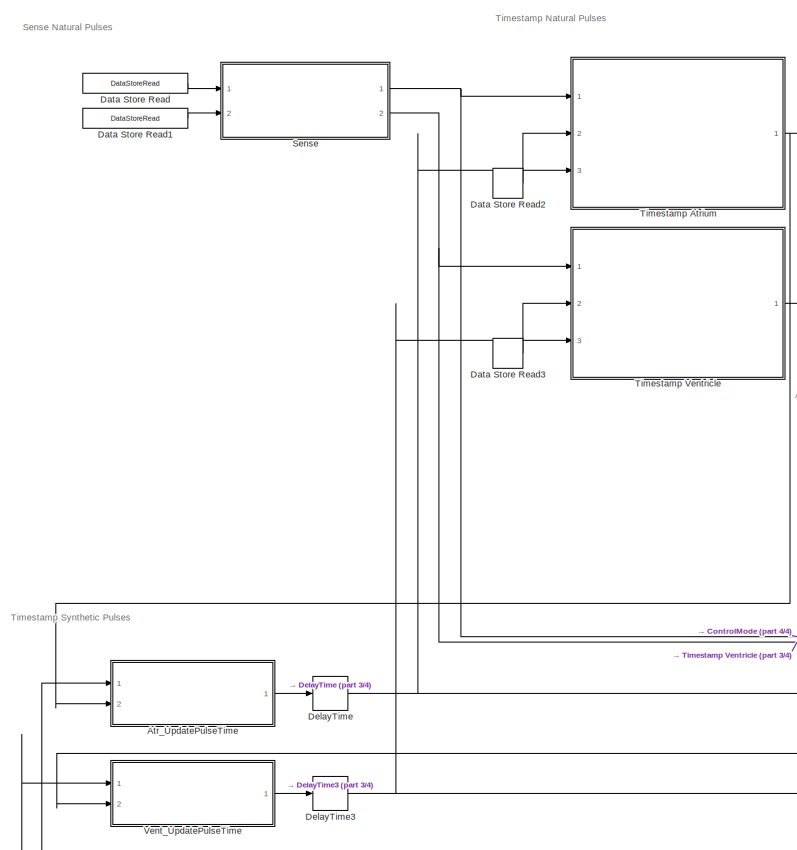
[diagram: root canvas - part 1/4, central region]
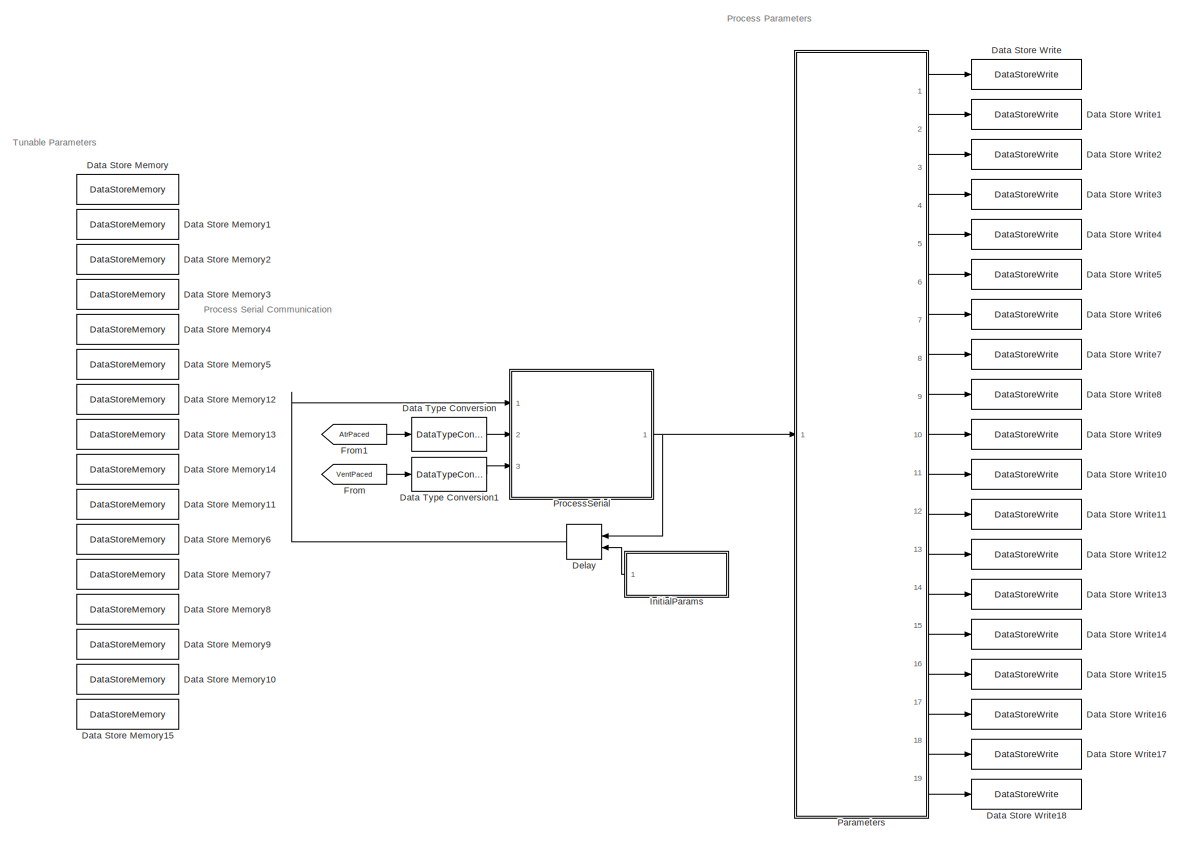
[diagram: root canvas - part 2/4, middle left region]
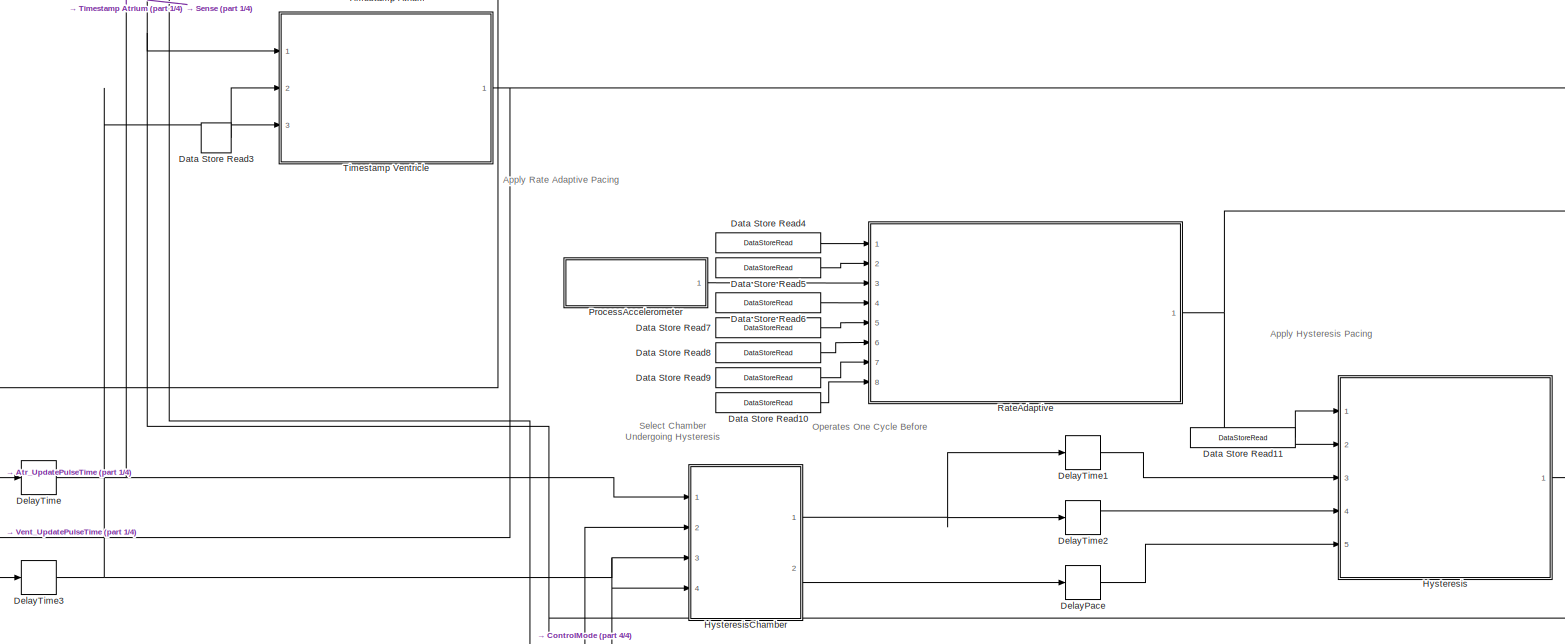
[diagram: root canvas - part 3/4, central region]
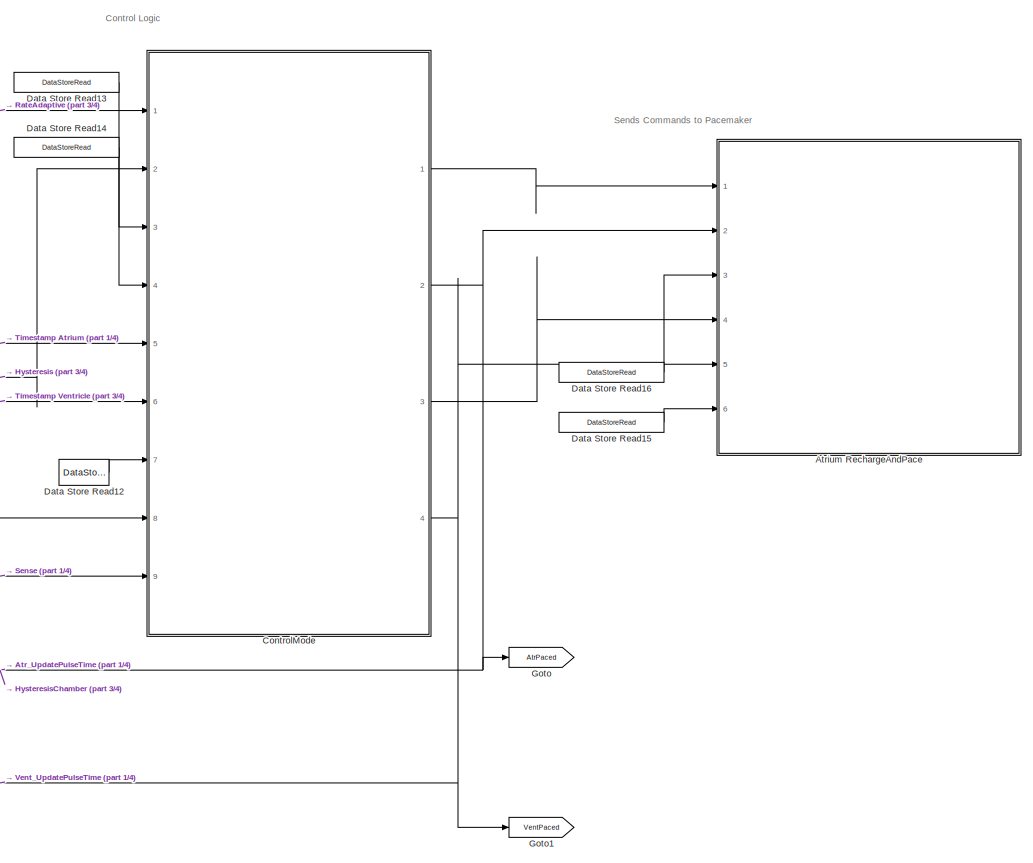
[diagram: root canvas - part 4/4, middle right region]
MODEL slx_fc28a75de20f
KIND model
CONFIG AbsTol = auto
CONFIG EnableMultiTasking = on
CONFIG FixedStep = 1e-3
CONFIG InitFcn = Sensed = Simulink.Signal;\nSensed.DataType = 'uint8';\nSensed.Complexity = 'real';\nSensed.Dimensions = 1;\n\nResponse = Simulink.Signal;\nResponse.DataType = 'uint8';\nResponse.Complexity = 'real';\nResponse.Dimensions = 1;\n\nPaced = Simulink.Signal;\nPaced.DataType = 'uint8';\nPaced.Complexity = 'real';\nPaced.Dimensions = 1;\n\nChamber = Simulink.Signal;\nChamber.DataType = 'uint8';\nChamber.Complexity = 'real...<+26ch>
CONFIG MaxStep = auto
CONFIG MinStep = auto
CONFIG RelTol = 1e-3
CONFIG SampleTimeConstraint = Unconstrained
CONFIG Solver = FixedStepAuto
CONFIG SolverName = FixedStepAuto
CONFIG StartTime = 0.0
CONFIG StopTime = 10.0
BLOCK [ModelReference] Atr_UpdatePulseTime
  ModelNameDialog = UpdatePulseTime.slx
  ModelReferenceVersion = 1.13
  Ports = [2, 1]
BLOCK [ModelReference] Atrium RechargeAndPace
  ModelNameDialog = RechargeAndPace.slx
  ModelReferenceVersion = 1.48
  PortSchema = {"entries":[{"content":{"sides":[{"content":{"connectorIds":["In1","In2","In4","In5","In3","In6"]},"type":"ConnectorPlacement.EquallySpacedRectSide","uuid":"75584b4a-f0f0-4d09-84a6-33422e7feb5a"},{"content":{"connectorIds":[],"side":"RIGHT"},"type":"ConnectorPlacement.EquallySpacedRectSide","uuid":"0c263276-e344-4260-be9c-a572df67c3fb"},{"content":{"connectorIds":[],"side":"TOP"},"type":"Connector...<+266ch>
  Ports = [6]
BLOCK [ModelReference] ControlMode
  ModelNameDialog = ControlMode.slx
  ModelReferenceVersion = 1.41
  PortSchema = {"entries":[{"content":{"sides":[{"content":{"connectorIds":["In3","In4","In1","In5","In6","In2","In7","In8","In9"]},"type":"ConnectorPlacement.EquallySpacedRectSide","uuid":"6632d3f0-aa64-4d08-bbe9-86261208e7ec"},{"content":{"connectorIds":["Out1","Out2","Out3","Out4"],"side":"RIGHT"},"type":"ConnectorPlacement.EquallySpacedRectSide","uuid":"64c7d09c-149d-4c40-8331-deac9c0e6c2d"},{"content":{"con...<+311ch>
  Ports = [9, 4]
BLOCK [DataStoreMemory] Data Store Memory
  DataStoreName = LRL
  OutDataTypeStr = uint16
  ReadBeforeWriteMsg = warning
  ShowAdditionalParam = off
  WriteAfterReadMsg = warning
  WriteAfterWriteMsg = warning
BLOCK [DataStoreMemory] Data Store Memory1
  DataStoreName = AtriumAmp
  OutDataTypeStr = single
  ReadBeforeWriteMsg = warning
  ShowAdditionalParam = off
  WriteAfterReadMsg = warning
  WriteAfterWriteMsg = warning
BLOCK [DataStoreMemory] Data Store Memory10
  DataStoreName = RateAdaptiveOn
  OutDataTypeStr = uint8
  ReadBeforeWriteMsg = warning
  ShowAdditionalParam = off
  WriteAfterReadMsg = warning
  WriteAfterWriteMsg = warning
BLOCK [DataStoreMemory] Data Store Memory11
  DataStoreName = MSR
  OutDataTypeStr = uint16
  ReadBeforeWriteMsg = warning
  ShowAdditionalParam = off
  WriteAfterReadMsg = warning
  WriteAfterWriteMsg = warning
BLOCK [DataStoreMemory] Data Store Memory12
  DataStoreName = RP
  OutDataTypeStr = uint16
  ReadBeforeWriteMsg = warning
  ShowAdditionalParam = off
  WriteAfterReadMsg = warning
  WriteAfterWriteMsg = warning
BLOCK [DataStoreMemory] Data Store Memory13
  DataStoreName = AtriumSensitivity
  OutDataTypeStr = single
  ReadBeforeWriteMsg = warning
  ShowAdditionalParam = off
  WriteAfterReadMsg = warning
  WriteAfterWriteMsg = warning
BLOCK [DataStoreMemory] Data Store Memory14
  DataStoreName = VentricleSensitivity
  OutDataTypeStr = single
  ReadBeforeWriteMsg = warning
  ShowAdditionalParam = off
  WriteAfterReadMsg = warning
  WriteAfterWriteMsg = warning
BLOCK [DataStoreMemory] Data Store Memory15
  DataStoreName = AVDelay
  OutDataTypeStr = uint16
  ReadBeforeWriteMsg = warning
  ShowAdditionalParam = off
  WriteAfterReadMsg = warning
  WriteAfterWriteMsg = warning
BLOCK [DataStoreMemory] Data Store Memory2
  DataStoreName = AtriumPulseWidth
  OutDataTypeStr = uint16
  ReadBeforeWriteMsg = warning
  ShowAdditionalParam = off
  WriteAfterReadMsg = warning
  WriteAfterWriteMsg = warning
BLOCK [DataStoreMemory] Data Store Memory3
  DataStoreName = VentricleAmp
  OutDataTypeStr = single
  ReadBeforeWriteMsg = warning
  ShowAdditionalParam = off
  WriteAfterReadMsg = warning
  WriteAfterWriteMsg = warning
BLOCK [DataStoreMemory] Data Store Memory4
  DataStoreName = VentriclePulseWidth
  OutDataTypeStr = uint16
  ReadBeforeWriteMsg = warning
  ShowAdditionalParam = off
  WriteAfterReadMsg = warning
  WriteAfterWriteMsg = warning
BLOCK [DataStoreMemory] Data Store Memory5
  DataStoreName = HysteresisInterval
  OutDataTypeStr = uint16
  ReadBeforeWriteMsg = warning
  ShowAdditionalParam = off
  WriteAfterReadMsg = warning
  WriteAfterWriteMsg = warning
BLOCK [DataStoreMemory] Data Store Memory6
  DataStoreName = ActivityThreshold
  OutDataTypeStr = single
  ReadBeforeWriteMsg = warning
  ShowAdditionalParam = off
  WriteAfterReadMsg = warning
  WriteAfterWriteMsg = warning
BLOCK [DataStoreMemory] Data Store Memory7
  DataStoreName = ResponseFactor
  OutDataTypeStr = uint8
  ReadBeforeWriteMsg = warning
  ShowAdditionalParam = off
  WriteAfterReadMsg = warning
  WriteAfterWriteMsg = warning
BLOCK [DataStoreMemory] Data Store Memory8
  DataStoreName = ReactionTime
  OutDataTypeStr = uint16
  ReadBeforeWriteMsg = warning
  ShowAdditionalParam = off
  WriteAfterReadMsg = warning
  WriteAfterWriteMsg = warning
BLOCK [DataStoreMemory] Data Store Memory9
  DataStoreName = RecoveryTime
  OutDataTypeStr = uint16
  ReadBeforeWriteMsg = warning
  ShowAdditionalParam = off
  WriteAfterReadMsg = warning
  WriteAfterWriteMsg = warning
BLOCK [DataStoreRead] Data Store Read
  DataStoreName = AtriumSensitivity
  Ports = [0, 1]
BLOCK [DataStoreRead] Data Store Read1
  DataStoreName = VentricleSensitivity
  Ports = [0, 1]
BLOCK [DataStoreRead] Data Store Read10
  DataStoreName = RateAdaptiveOn
  Ports = [0, 1]
BLOCK [DataStoreRead] Data Store Read11
  DataStoreName = HysteresisInterval
  Ports = [0, 1]
BLOCK [DataStoreRead] Data Store Read12
  DataStoreName = AVDelay
  Ports = [0, 1]
BLOCK [DataStoreRead] Data Store Read13
  DataStoreName = AtriumPulseWidth
  Ports = [0, 1]
BLOCK [DataStoreRead] Data Store Read14
  DataStoreName = VentriclePulseWidth
  Ports = [0, 1]
BLOCK [DataStoreRead] Data Store Read15
  DataStoreName = VentricleAmp
  Ports = [0, 1]
BLOCK [DataStoreRead] Data Store Read16
  DataStoreName = AtriumAmp
  Ports = [0, 1]
BLOCK [DataStoreRead] Data Store Read2
  DataStoreName = RP
  Ports = [0, 1]
BLOCK [DataStoreRead] Data Store Read3
  DataStoreName = RP
  Ports = [0, 1]
BLOCK [DataStoreRead] Data Store Read4
  DataStoreName = LRL
  Ports = [0, 1]
BLOCK [DataStoreRead] Data Store Read5
  DataStoreName = MSR
  Ports = [0, 1]
BLOCK [DataStoreRead] Data Store Read6
  DataStoreName = ActivityThreshold
  Ports = [0, 1]
BLOCK [DataStoreRead] Data Store Read7
  DataStoreName = ResponseFactor
  Ports = [0, 1]
BLOCK [DataStoreRead] Data Store Read8
  DataStoreName = ReactionTime
  Ports = [0, 1]
BLOCK [DataStoreRead] Data Store Read9
  DataStoreName = RecoveryTime
  Ports = [0, 1]
BLOCK [DataStoreWrite] Data Store Write
  DataStoreName = LRL
  Ports = [1]
BLOCK [DataStoreWrite] Data Store Write1
  DataStoreName = AtriumAmp
  Ports = [1]
BLOCK [DataStoreWrite] Data Store Write10
  DataStoreName = ActivityThreshold
  Ports = [1]
BLOCK [DataStoreWrite] Data Store Write11
  DataStoreName = ResponseFactor
  Ports = [1]
BLOCK [DataStoreWrite] Data Store Write12
  DataStoreName = ReactionTime
  Ports = [1]
BLOCK [DataStoreWrite] Data Store Write13
  DataStoreName = RecoveryTime
  Ports = [1]
BLOCK [DataStoreWrite] Data Store Write14
  DataStoreName = RateAdaptiveOn
  Ports = [1]
BLOCK [DataStoreWrite] Data Store Write15
  DataStoreName = AVDelay
  Ports = [1]
BLOCK [DataStoreWrite] Data Store Write16
  DataStoreName = Sensed
  Ports = [1]
BLOCK [DataStoreWrite] Data Store Write17
  DataStoreName = Response
  Ports = [1]
BLOCK [DataStoreWrite] Data Store Write18
  DataStoreName = Paced
  Ports = [1]
BLOCK [DataStoreWrite] Data Store Write2
  DataStoreName = AtriumPulseWidth
  Ports = [1]
BLOCK [DataStoreWrite] Data Store Write3
  DataStoreName = VentricleAmp
  Ports = [1]
BLOCK [DataStoreWrite] Data Store Write4
  DataStoreName = VentriclePulseWidth
  Ports = [1]
BLOCK [DataStoreWrite] Data Store Write5
  DataStoreName = HysteresisInterval
  Ports = [1]
BLOCK [DataStoreWrite] Data Store Write6
  DataStoreName = RP
  Ports = [1]
BLOCK [DataStoreWrite] Data Store Write7
  DataStoreName = AtriumSensitivity
  Ports = [1]
BLOCK [DataStoreWrite] Data Store Write8
  DataStoreName = VentricleSensitivity
  Ports = [1]
BLOCK [DataStoreWrite] Data Store Write9
  DataStoreName = MSR
  Ports = [1]
BLOCK [DataTypeConversion] Data Type Conversion
  OutDataTypeStr = uint8
  RndMeth = Floor
  SaturateOnIntegerOverflow = off
BLOCK [DataTypeConversion] Data Type Conversion1
  OutDataTypeStr = uint8
  RndMeth = Floor
  SaturateOnIntegerOverflow = off
BLOCK [Delay] Delay
  DelayLength = 1
  InitialCondition = [1000 5 10 5 10 300 400 3.5 3.5 500 0.1 16 5000 5000 1 100 1 1 1]
  InitialConditionSource = Input port
  InputPortMap = u0,p4
  Ports = [2, 1]
BLOCK [Delay] DelayPace
  DelayLength = 1
  InputPortMap = u0
  Ports = [1, 1]
BLOCK [Delay] DelayTime
  DelayLength = 1
  InputPortMap = u0
  Ports = [1, 1]
BLOCK [Delay] DelayTime1
  DelayLength = 1
  InputPortMap = u0
  Ports = [1, 1]
BLOCK [Delay] DelayTime2
  InputPortMap = u0
  Ports = [1, 1]
BLOCK [Delay] DelayTime3
  DelayLength = 1
  InputPortMap = u0
  Ports = [1, 1]
BLOCK [From] From
  GotoTag = VentPaced
BLOCK [From] From1
  GotoTag = AtrPaced
BLOCK [Goto] Goto
  GotoTag = AtrPaced
BLOCK [Goto] Goto1
  GotoTag = VentPaced
BLOCK [ModelReference] Hysteresis
  ModelNameDialog = Hysteresis.slx
  ModelReferenceVersion = 1.21
  PortSchema = {"entries":[{"content":{"sides":[{"content":{"connectorIds":["In2","In1","In3","In4","In5"]},"type":"ConnectorPlacement.EquallySpacedRectSide","uuid":"0363428c-2bcd-4f6e-9e7c-a7a2e1284dda"},{"content":{"connectorIds":["Out1"],"side":"RIGHT"},"type":"ConnectorPlacement.EquallySpacedRectSide","uuid":"eba4b486-06a8-42d4-b87a-2bd50947fa00"},{"content":{"connectorIds":[],"side":"TOP"},"type":"Connector...<+266ch>
  Ports = [5, 1]
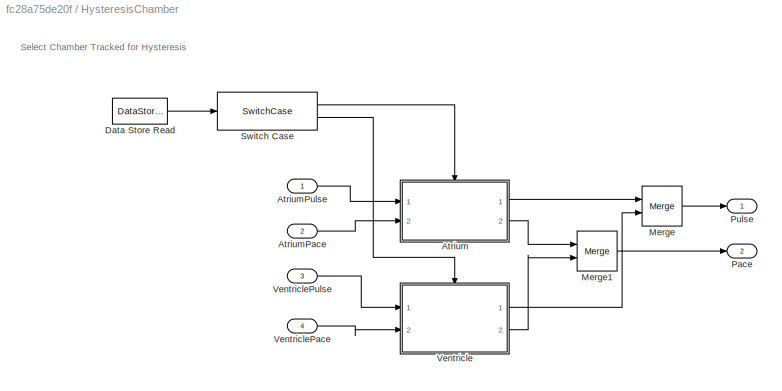
BLOCK [SubSystem] HysteresisChamber
  Ports = [4, 2]
  RequestExecContextInheritance = off
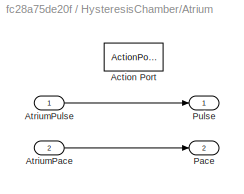
BLOCK [SubSystem] HysteresisChamber/Atrium
  Ports = [2, 2, 0, 0, 0, 0, 0, 1]
  RequestExecContextInheritance = off
  VariantControl = ATR_SENSING
BLOCK [ActionPort] HysteresisChamber/Atrium/Action Port
  ActionPortLabel = case [ 1 3 ]:
BLOCK [Inport] HysteresisChamber/Atrium/AtriumPace
  Port = 2
BLOCK [Inport] HysteresisChamber/Atrium/AtriumPulse
BLOCK [Outport] HysteresisChamber/Atrium/Pace
  Port = 2
BLOCK [Outport] HysteresisChamber/Atrium/Pulse
BLOCK [Inport] HysteresisChamber/AtriumPace
  Port = 2
BLOCK [Inport] HysteresisChamber/AtriumPulse
BLOCK [DataStoreRead] HysteresisChamber/Data Store Read
  DataStoreName = Sensed
  Ports = [0, 1]
BLOCK [Merge] HysteresisChamber/Merge
  Ports = [2, 1]
BLOCK [Merge] HysteresisChamber/Merge1
  Ports = [2, 1]
BLOCK [Outport] HysteresisChamber/Pace
  Port = 2
BLOCK [Outport] HysteresisChamber/Pulse
BLOCK [SwitchCase] HysteresisChamber/Switch Case
  CaseConditions = {[1,3], 2}
  Ports = [1, 2]
  ShowDefaultCase = off
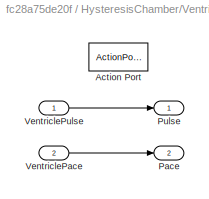
BLOCK [SubSystem] HysteresisChamber/Ventricle
  Ports = [2, 2, 0, 0, 0, 0, 0, 1]
  RequestExecContextInheritance = off
  VariantControl = VENT_SENSING
BLOCK [ActionPort] HysteresisChamber/Ventricle/Action Port
  ActionPortLabel = case [ 2 ]:
BLOCK [Outport] HysteresisChamber/Ventricle/Pace
  Port = 2
BLOCK [Outport] HysteresisChamber/Ventricle/Pulse
BLOCK [Inport] HysteresisChamber/Ventricle/VentriclePace
  Port = 2
BLOCK [Inport] HysteresisChamber/Ventricle/VentriclePulse
BLOCK [Inport] HysteresisChamber/VentriclePace
  Port = 4
BLOCK [Inport] HysteresisChamber/VentriclePulse
  Port = 3
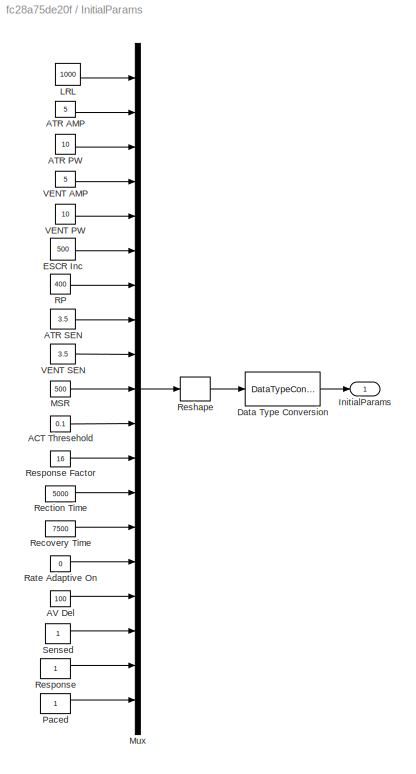
BLOCK [SubSystem] InitialParams
  Ports = [0, 1]
  RequestExecContextInheritance = off
BLOCK [Constant] InitialParams/ ACT Thresehold
  Value = 0.1
BLOCK [Constant] InitialParams/ MSR
  Value = 500
BLOCK [Constant] InitialParams/ VENT AMP
  Value = 5
BLOCK [Constant] InitialParams/ATR AMP
  Value = 5
BLOCK [Constant] InitialParams/ATR PW
  Value = 10
BLOCK [Constant] InitialParams/ATR SEN
  Value = 3.5
BLOCK [Constant] InitialParams/AV Del
  Value = 100
BLOCK [DataTypeConversion] InitialParams/Data Type Conversion
  OutDataTypeStr = single
  RndMeth = Floor
  SaturateOnIntegerOverflow = off
BLOCK [Constant] InitialParams/ESCR Inc
  Value = 500
BLOCK [Outport] InitialParams/InitialParams
BLOCK [Constant] InitialParams/LRL
  Value = 1000
BLOCK [Mux] InitialParams/Mux
  DisplayOption = bar
  Inputs = 19
  Ports = [19, 1]
BLOCK [Constant] InitialParams/Paced
BLOCK [Constant] InitialParams/RP
  Value = 400
BLOCK [Constant] InitialParams/Rate Adaptive On
  Value = 0
BLOCK [Constant] InitialParams/Recovery Time
  Value = 7500
BLOCK [Constant] InitialParams/Rection Time
  Value = 5000
BLOCK [Reshape] InitialParams/Reshape
  OutputDimensionality = Row vector (2-D)
  Ports = [1, 1]
BLOCK [Constant] InitialParams/Response
BLOCK [Constant] InitialParams/Response Factor
  Value = 16
BLOCK [Constant] InitialParams/Sensed
BLOCK [Constant] InitialParams/VENT PW
  Value = 10
BLOCK [Constant] InitialParams/VENT SEN
  Value = 3.5
BLOCK [ModelReference] Parameters
  ModelNameDialog = Parameters.slx
  ModelReferenceVersion = 1.24
  Ports = [1, 19]
BLOCK [ModelReference] ProcessAccelerometer
  ModelNameDialog = ProcessAccelerometer.slx
  ModelReferenceVersion = 1.16
  Ports = [0, 1]
BLOCK [ModelReference] ProcessSerial
  ModelNameDialog = ProcessSerial.slx
  ModelReferenceVersion = 1.41
  Ports = [3, 1]
BLOCK [ModelReference] RateAdaptive
  ModelNameDialog = RateAdaptive.slx
  ModelReferenceVersion = 1.32
  Ports = [8, 1]
BLOCK [ModelReference] Sense
  ModelNameDialog = Sense.slx
  ModelReferenceVersion = 1.40
  Ports = [2, 2]
BLOCK [ModelReference] Timestamp Atrium
  ModelNameDialog = Timestamp.slx
  ModelReferenceVersion = 1.22
  PortSchema = {"entries":[{"content":{"sides":[{"content":{"connectorIds":["In1","In3","In2"]},"type":"ConnectorPlacement.EquallySpacedRectSide","uuid":"07fba71a-3d16-4041-80f3-8d8caa2e5429"},{"content":{"connectorIds":["Out1"],"side":"RIGHT"},"type":"ConnectorPlacement.EquallySpacedRectSide","uuid":"c6e0a25f-6fc6-4904-ad60-49887298795d"},{"content":{"connectorIds":[],"side":"TOP"},"type":"ConnectorPlacement.Eq...<+254ch>
  Ports = [3, 1]
BLOCK [ModelReference] Timestamp Ventricle
  ModelNameDialog = Timestamp.slx
  ModelReferenceVersion = 1.22
  PortSchema = {"entries":[{"content":{"sides":[{"content":{"connectorIds":["In1","In3","In2"]},"type":"ConnectorPlacement.EquallySpacedRectSide","uuid":"07fba71a-3d16-4041-80f3-8d8caa2e5429"},{"content":{"connectorIds":["Out1"],"side":"RIGHT"},"type":"ConnectorPlacement.EquallySpacedRectSide","uuid":"c6e0a25f-6fc6-4904-ad60-49887298795d"},{"content":{"connectorIds":[],"side":"TOP"},"type":"ConnectorPlacement.Eq...<+254ch>
  Ports = [3, 1]
BLOCK [ModelReference] Vent_UpdatePulseTime
  ModelNameDialog = UpdatePulseTime.slx
  ModelReferenceVersion = 1.13
  Ports = [2, 1]
ANNOTATION (root): Apply Hysteresis Pacing
ANNOTATION (root): Apply Rate Adaptive Pacing
ANNOTATION (root): Control Logic
ANNOTATION (root): Operates One Cycle Before
ANNOTATION (root): Process Parameters
ANNOTATION (root): Process Serial Communication
ANNOTATION (root): Select Chamber Undergoing Hysteresis
ANNOTATION (root): Sends Commands to Pacemaker
ANNOTATION (root): Sense Natural Pulses
ANNOTATION (root): Timestamp Natural Pulses
ANNOTATION (root): Timestamp Synthetic Pulses
ANNOTATION (root): Tunable Parameters
ANNOTATION HysteresisChamber: Select Chamber Tracked for Hysteresis
LINE Atr_UpdatePulseTime:1 -> DelayTime:1
LINE ControlMode:1 -> Atrium RechargeAndPace:1
NET ControlMode:2 -> Atr_UpdatePulseTime:1, Atrium RechargeAndPace:2, Goto:1, HysteresisChamber:2
LINE ControlMode:3 -> Atrium RechargeAndPace:4
NET ControlMode:4 -> Atrium RechargeAndPace:5, Goto1:1, HysteresisChamber:4, Vent_UpdatePulseTime:1
LINE Data Store Read10:1 -> RateAdaptive:8
LINE Data Store Read11:1 -> Hysteresis:1
LINE Data Store Read12:1 -> ControlMode:7
LINE Data Store Read13:1 -> ControlMode:3
LINE Data Store Read14:1 -> ControlMode:4
LINE Data Store Read15:1 -> Atrium RechargeAndPace:6
LINE Data Store Read16:1 -> Atrium RechargeAndPace:3
LINE Data Store Read1:1 -> Sense:2
LINE Data Store Read2:1 -> Timestamp Atrium:2
LINE Data Store Read3:1 -> Timestamp Ventricle:2
LINE Data Store Read4:1 -> RateAdaptive:1
LINE Data Store Read5:1 -> RateAdaptive:2
LINE Data Store Read6:1 -> RateAdaptive:4
LINE Data Store Read7:1 -> RateAdaptive:5
LINE Data Store Read8:1 -> RateAdaptive:6
LINE Data Store Read9:1 -> RateAdaptive:7
LINE Data Store Read:1 -> Sense:1
LINE Data Type Conversion1:1 -> ProcessSerial:3
LINE Data Type Conversion:1 -> ProcessSerial:2
LINE Delay:1 -> ProcessSerial:1
LINE DelayPace:1 -> Hysteresis:5
LINE DelayTime1:1 -> Hysteresis:3
LINE DelayTime2:1 -> Hysteresis:4
NET DelayTime3:1 -> HysteresisChamber:3, Timestamp Ventricle:3
NET DelayTime:1 -> HysteresisChamber:1, Timestamp Atrium:3
LINE From1:1 -> Data Type Conversion:1
LINE From:1 -> Data Type Conversion1:1
LINE Hysteresis:1 -> ControlMode:2
LINE HysteresisChamber/Atrium/AtriumPace:1 -> HysteresisChamber/Atrium/Pace:1
LINE HysteresisChamber/Atrium/AtriumPulse:1 -> HysteresisChamber/Atrium/Pulse:1
LINE HysteresisChamber/Atrium:1 -> HysteresisChamber/Merge:1
LINE HysteresisChamber/Atrium:2 -> HysteresisChamber/Merge1:1
LINE HysteresisChamber/AtriumPace:1 -> HysteresisChamber/Atrium:2
LINE HysteresisChamber/AtriumPulse:1 -> HysteresisChamber/Atrium:1
LINE HysteresisChamber/Data Store Read:1 -> HysteresisChamber/Switch Case:1
LINE HysteresisChamber/Merge1:1 -> HysteresisChamber/Pace:1
LINE HysteresisChamber/Merge:1 -> HysteresisChamber/Pulse:1
LINE HysteresisChamber/Switch Case:1 -> HysteresisChamber/Atrium:ifaction
LINE HysteresisChamber/Switch Case:2 -> HysteresisChamber/Ventricle:ifaction
LINE HysteresisChamber/Ventricle/VentriclePace:1 -> HysteresisChamber/Ventricle/Pace:1
LINE HysteresisChamber/Ventricle/VentriclePulse:1 -> HysteresisChamber/Ventricle/Pulse:1
LINE HysteresisChamber/Ventricle:1 -> HysteresisChamber/Merge:2
LINE HysteresisChamber/Ventricle:2 -> HysteresisChamber/Merge1:2
LINE HysteresisChamber/VentriclePace:1 -> HysteresisChamber/Ventricle:2
LINE HysteresisChamber/VentriclePulse:1 -> HysteresisChamber/Ventricle:1
NET HysteresisChamber:1 -> DelayTime1:1, DelayTime2:1
LINE HysteresisChamber:2 -> DelayPace:1
LINE InitialParams/ ACT Thresehold:1 -> InitialParams/Mux:11
LINE InitialParams/ MSR:1 -> InitialParams/Mux:10
LINE InitialParams/ VENT AMP:1 -> InitialParams/Mux:4
LINE InitialParams/ATR AMP:1 -> InitialParams/Mux:2
LINE InitialParams/ATR PW:1 -> InitialParams/Mux:3
LINE InitialParams/ATR SEN:1 -> InitialParams/Mux:8
LINE InitialParams/AV Del:1 -> InitialParams/Mux:16
LINE InitialParams/Data Type Conversion:1 -> InitialParams/InitialParams:1
LINE InitialParams/ESCR Inc:1 -> InitialParams/Mux:6
LINE InitialParams/LRL:1 -> InitialParams/Mux:1
LINE InitialParams/Mux:1 -> InitialParams/Reshape:1
LINE InitialParams/Paced:1 -> InitialParams/Mux:19
LINE InitialParams/RP:1 -> InitialParams/Mux:7
LINE InitialParams/Rate Adaptive On:1 -> InitialParams/Mux:15
LINE InitialParams/Recovery Time:1 -> InitialParams/Mux:14
LINE InitialParams/Rection Time:1 -> InitialParams/Mux:13
LINE InitialParams/Reshape:1 -> InitialParams/Data Type Conversion:1
LINE InitialParams/Response Factor:1 -> InitialParams/Mux:12
LINE InitialParams/Response:1 -> InitialParams/Mux:18
LINE InitialParams/Sensed:1 -> InitialParams/Mux:17
LINE InitialParams/VENT PW:1 -> InitialParams/Mux:5
LINE InitialParams/VENT SEN:1 -> InitialParams/Mux:9
LINE InitialParams:1 -> Delay:2
LINE Parameters:1 -> Data Store Write:1
LINE Parameters:10 -> Data Store Write9:1
LINE Parameters:11 -> Data Store Write10:1
LINE Parameters:12 -> Data Store Write11:1
LINE Parameters:13 -> Data Store Write12:1
LINE Parameters:14 -> Data Store Write13:1
LINE Parameters:15 -> Data Store Write14:1
LINE Parameters:16 -> Data Store Write15:1
LINE Parameters:17 -> Data Store Write16:1
LINE Parameters:18 -> Data Store Write17:1
LINE Parameters:19 -> Data Store Write18:1
LINE Parameters:2 -> Data Store Write1:1
LINE Parameters:3 -> Data Store Write2:1
LINE Parameters:4 -> Data Store Write3:1
LINE Parameters:5 -> Data Store Write4:1
LINE Parameters:6 -> Data Store Write5:1
LINE Parameters:7 -> Data Store Write6:1
LINE Parameters:8 -> Data Store Write7:1
LINE Parameters:9 -> Data Store Write8:1
LINE ProcessAccelerometer:1 -> RateAdaptive:3
NET ProcessSerial:1 -> Delay:1, Parameters:1
NET RateAdaptive:1 -> ControlMode:1, Hysteresis:2
NET Sense:1 -> ControlMode:9, Timestamp Atrium:1
NET Sense:2 -> ControlMode:8, Timestamp Ventricle:1
NET Timestamp Atrium:1 -> Atr_UpdatePulseTime:2, ControlMode:5
NET Timestamp Ventricle:1 -> ControlMode:6, Vent_UpdatePulseTime:2
LINE Vent_UpdatePulseTime:1 -> DelayTime3:1
note: NET lines group one-source signal fan-out (src -> all destinations, sorted); 1:1 wires keep LINE
